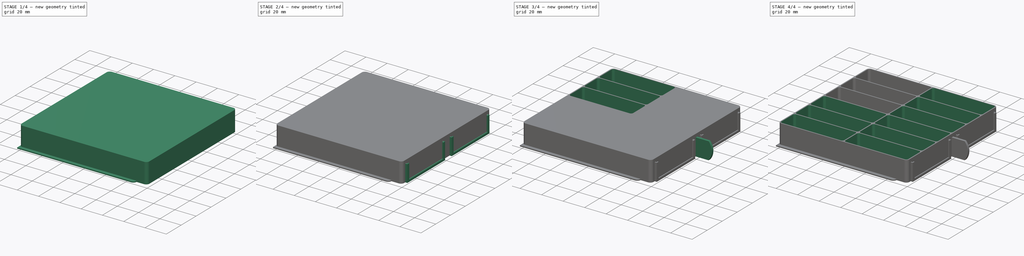
[diagram: build sequence overview — one tinted view per stage of 4, left to right]
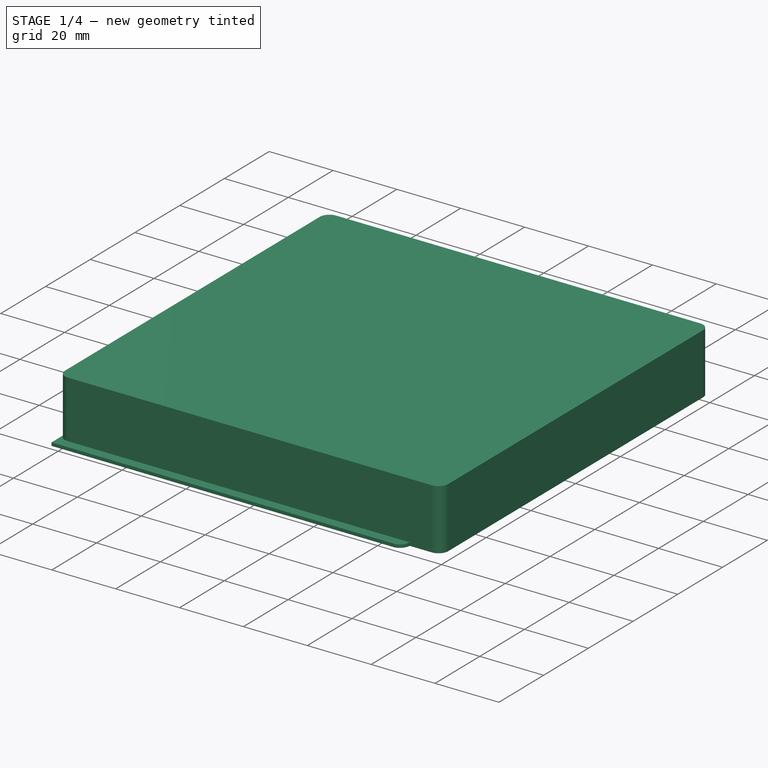
[diagram: stage 1 of 4 — iso view after this stage's code; geometry added in this stage tinted green]
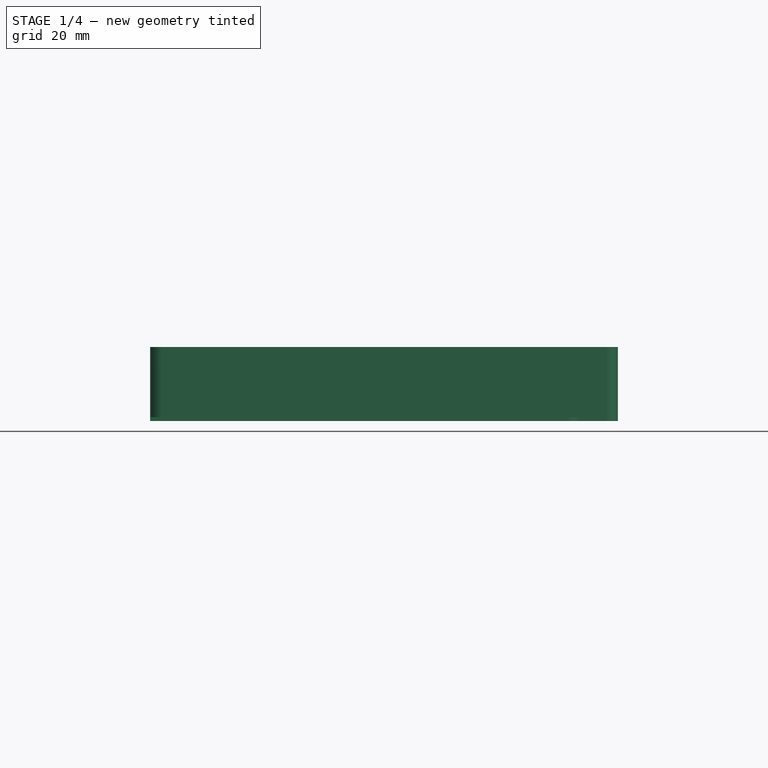
[diagram: stage 1 of 4 — front view after this stage's code; geometry added in this stage tinted green]
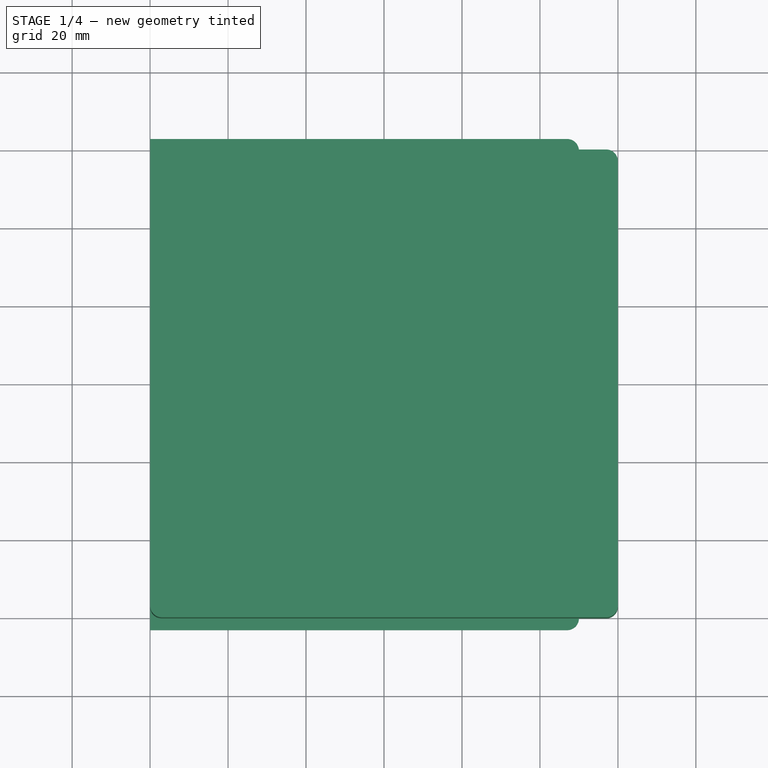
[diagram: stage 1 of 4 — top view after this stage's code; geometry added in this stage tinted green]
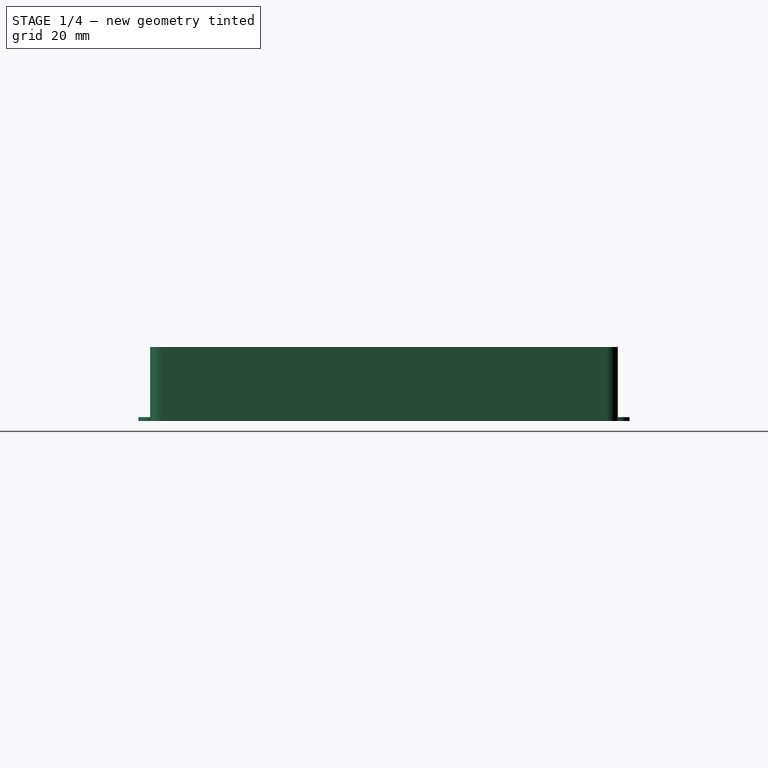
[diagram: stage 1 of 4 — right view after this stage's code; geometry added in this stage tinted green]
FCSTD DOCUMENT  (FreeCAD 0.20R27422 (Git))
Label: _Drawer_12_Comp_D_-_1U
License: CreativeCommons Attribution
LicenseURL: http://creativecommons.org/licenses/by/4.0/
objects: Sketcher::SketchObject×7, PartDesign::Pad×4, PartDesign::Pocket×3, PartDesign::Body×2, PartDesign::Mirrored×2, Spreadsheet::Sheet×1, PartDesign::Plane×1, PartDesign::FeatureBase×1, PartDesign::Fillet×1, PartDesign::MultiTransform×1
note: 30 computed .brp shape members not serialized (recipe doc carries the construction recipe); baked Part::Feature solids carry a one-line shape summary decoded from their .brp

FEATURE [Spreadsheet::Sheet] Spreadsheet  label="DrawerHight"
  cells = A2=please enter the desired height in mm; A3=Hight:; B3(hight)=19; A5=Info:; A6=1U = 19mm; C6=wallthickness = 1.0 mm; A7=2U = 39mm; A8=3U = 59mm; A9=4U = 79mm; A10=5U = 99mm; A11=6U = 119mm
FEATURE [Sketcher::SketchObject] Sketch
  FullyConstrained = false
  MapMode = 5
  Support = -> [XY_Plane]
  sketch-geometry (8):
    g0: LineSegment StartX=-57 StartY=60 StartZ=0 EndX=57 EndY=60 EndZ=0
    g1: LineSegment StartX=60 StartY=57 StartZ=0 EndX=60 EndY=-57 EndZ=0
    g2: LineSegment StartX=57 StartY=-60 StartZ=0 EndX=-57 EndY=-60 EndZ=0
    g3: LineSegment StartX=-60 StartY=-57 StartZ=0 EndX=-60 EndY=57 EndZ=0
    g4: ArcOfCircle CenterX=-57 CenterY=57 CenterZ=0 NormalX=0 NormalY=0 NormalZ=1 AngleXU=0 Radius=3 StartAngle=1.5708 EndAngle=3.14159
    g5: ArcOfCircle CenterX=57 CenterY=57 CenterZ=0 NormalX=0 NormalY=0 NormalZ=1 AngleXU=0 Radius=3 StartAngle=0 EndAngle=1.5708
    g6: ArcOfCircle CenterX=57 CenterY=-57 CenterZ=0 NormalX=0 NormalY=0 NormalZ=1 AngleXU=0 Radius=3 StartAngle=4.71239 EndAngle=6.28319
    g7: ArcOfCircle CenterX=-57 CenterY=-57 CenterZ=0 NormalX=0 NormalY=0 NormalZ=1 AngleXU=0 Radius=3 StartAngle=3.14159 EndAngle=4.71239
  constraints (19):
    c: Horizontal(g0)
    c: Horizontal(g2)
    c: Vertical(g1)
    c: Vertical(g3)
    c: Equal(g0,g3)
    c: Tangent(g3,g4) = 1.5708
    c: Tangent(g0,g4) = 1.5708
    c: Tangent(g0,g5) = 1.5708
    c: Tangent(g1,g5) = 1.5708
    c: Tangent(g1,g6) = 1.5708
    c: Tangent(g2,g6) = 1.5708
    c: Tangent(g2,g7) = 1.5708
    c: Tangent(g3,g7) = 1.5708
    c: Equal(g7,g4)
    c: Equal(g4,g5)
    c: Equal(g5,g6)
    c: Symmetric(g5,g7,g-1)
    c: DistanceX(g3,g1) = 120
    c: Radius(g7) = 3
FEATURE [PartDesign::Pad] Pad
  AllowMultiFace = false
  Direction = (0,0,1)
  Length = 19
  Length2 = 100
  Profile = -> Sketch
  Type = 0
  expr: Length = <<DrawerHight>>.hight
FEATURE [Sketcher::SketchObject] Sketch001
  ExternalGeometry = -> [Sketch]
  FullyConstrained = false
  MapMode = 5
  Support = -> [XY_Plane]
  sketch-geometry (6):
    g0: LineSegment StartX=-60 StartY=63 StartZ=0 EndX=47 EndY=63 EndZ=0
    g1: LineSegment StartX=50 StartY=60 StartZ=0 EndX=50 EndY=-60 EndZ=0
    g2: LineSegment StartX=47 StartY=-63 StartZ=0 EndX=-60 EndY=-63 EndZ=0
    g3: LineSegment StartX=-60 StartY=-63 StartZ=0 EndX=-60 EndY=63 EndZ=0
    g4: ArcOfCircle CenterX=47 CenterY=60 CenterZ=0 NormalX=0 NormalY=0 NormalZ=1 AngleXU=0 Radius=3 StartAngle=-9e-16 EndAngle=1.5708
    g5: ArcOfCircle CenterX=47 CenterY=-60 CenterZ=0 NormalX=0 NormalY=0 NormalZ=1 AngleXU=0 Radius=3 StartAngle=4.71239 EndAngle=6.28319
  constraints (15):
    c: Coincident(g2,g3)
    c: Coincident(g3,g0)
    c: Horizontal(g0)
    c: Horizontal(g2)
    c: Vertical(g1)
    c: Tangent(g0,g4) = 1.5708
    c: Tangent(g1,g4) = 1.5708
    c: Tangent(g2,g5) = 1.5708
    c: Tangent(g1,g5) = 1.5708
    c: Equal(g5,g4)
    c: Symmetric(g2,g0,g-1)
    c: PointOnObject(g-3,g3)
    c: DistanceY(g3,g3) = 126
    c: DistanceX(g0,g1) = 110
    c: Radius(g4) = 3
FEATURE [PartDesign::Pad] Pad001
  AllowMultiFace = false
  BaseFeature = -> Pad
  Direction = (0,0,1)
  Length = 1
  Length2 = 100
  Profile = -> Sketch001
  Type = 0
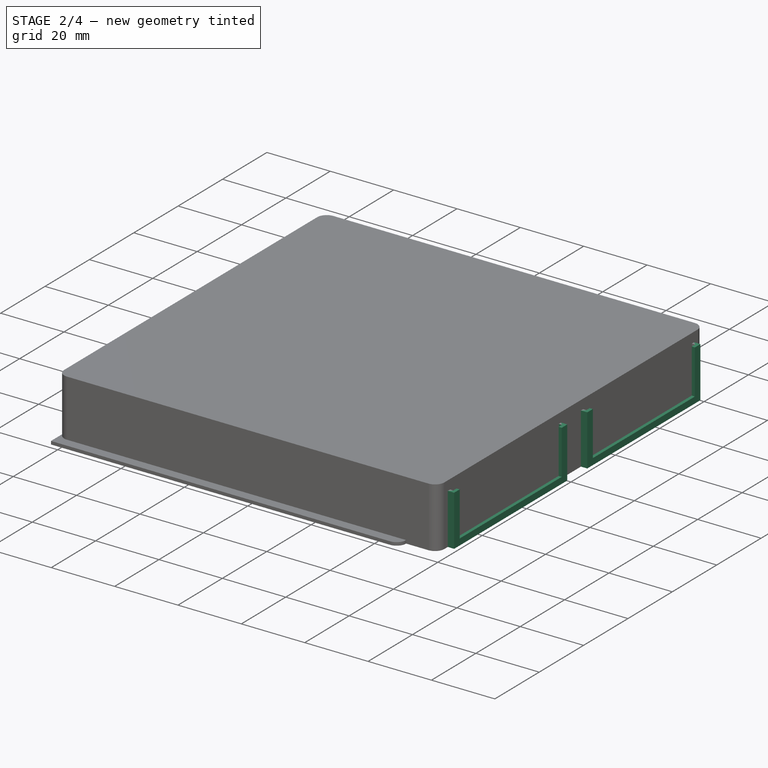
[diagram: stage 2 of 4 — iso view after this stage's code; geometry added in this stage tinted green]
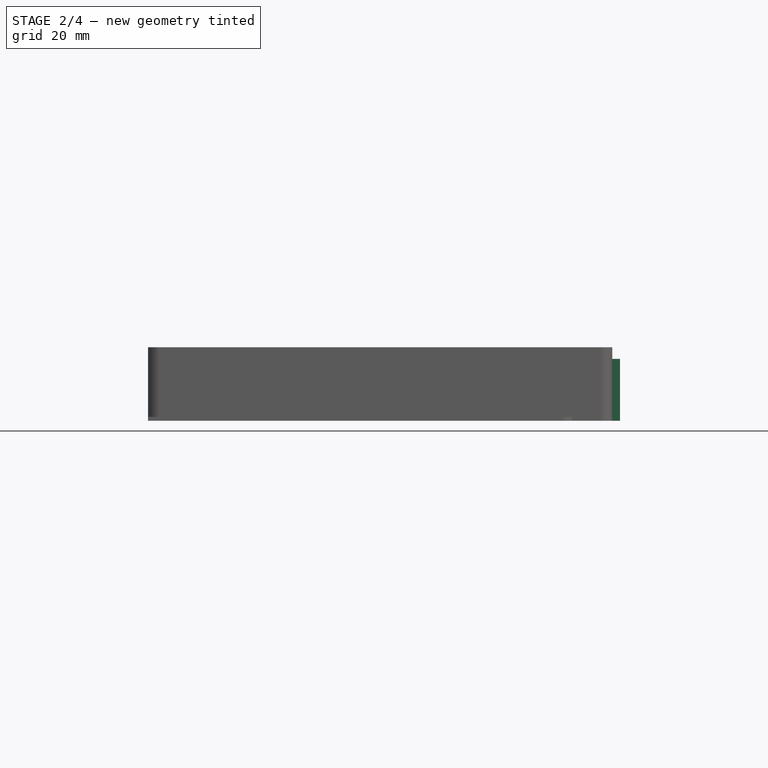
[diagram: stage 2 of 4 — front view after this stage's code; geometry added in this stage tinted green]
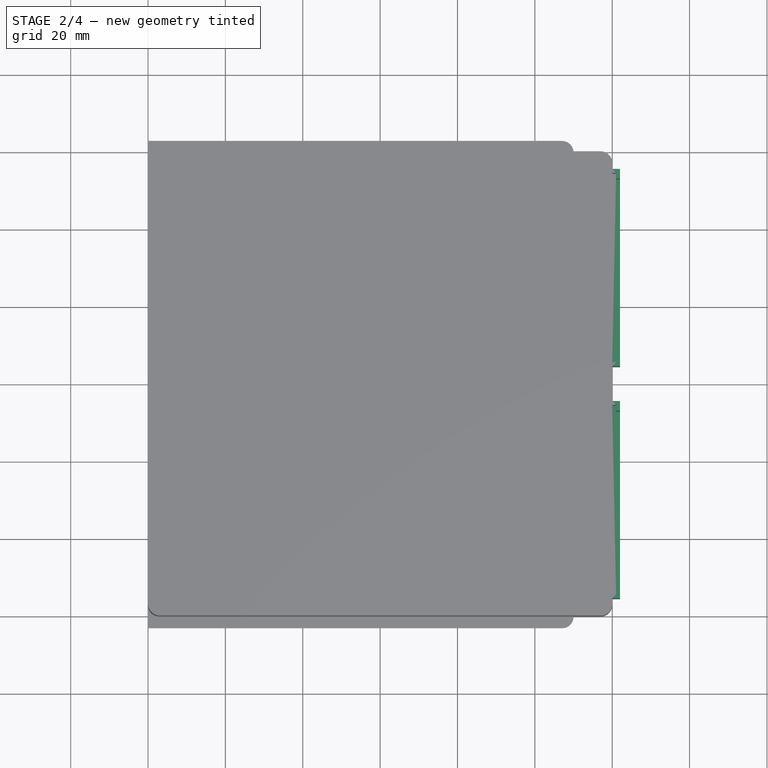
[diagram: stage 2 of 4 — top view after this stage's code; geometry added in this stage tinted green]
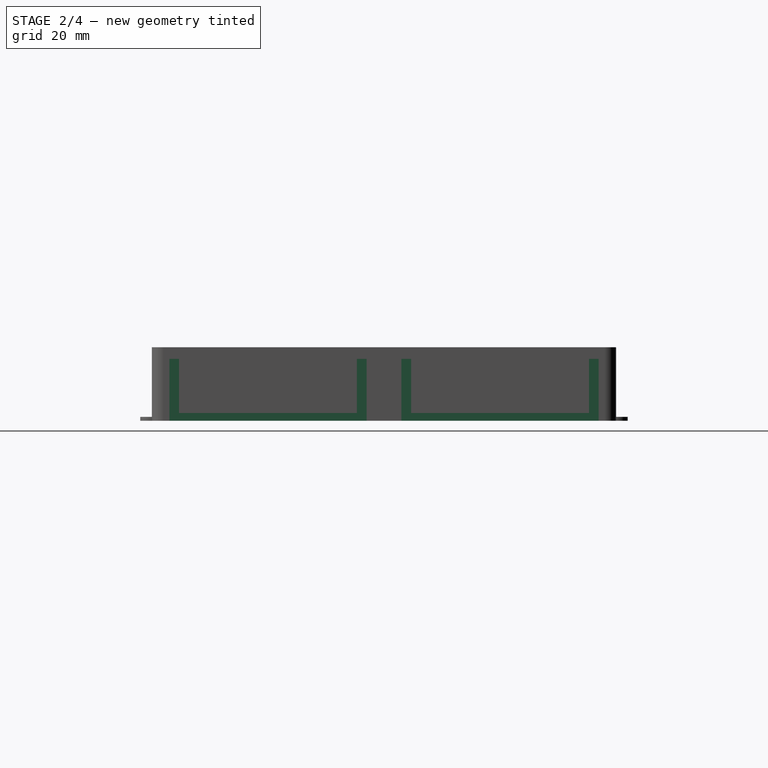
[diagram: stage 2 of 4 — right view after this stage's code; geometry added in this stage tinted green]
FEATURE [PartDesign::Plane] DatumPlane
  Length = 141.875
  MapMode = 5
  Placement = pos=(60,0,0) rot=(0.57735,0.57735,0.57735;2.0944rad)
  ResizeMode = 0
  Support = -> [Pad001]
  Width = 65.8745
FEATURE [Sketcher::SketchObject] Sketch002
  FullyConstrained = true
  MapMode = 5
  Placement = pos=(60,0,0) rot=(0.57735,0.57735,0.57735;2.0944rad)
  Support = -> [Pad001]
  sketch-geometry (8):
    g0: LineSegment StartX=-55.5 StartY=16 StartZ=0 EndX=-4.5 EndY=16 EndZ=0
    g1: LineSegment StartX=-4.5 StartY=16 StartZ=0 EndX=-4.5 EndY=0 EndZ=0
    g2: LineSegment StartX=-4.5 StartY=0 StartZ=0 EndX=-55.5 EndY=0 EndZ=0
    g3: LineSegment StartX=-55.5 StartY=0 StartZ=0 EndX=-55.5 EndY=16 EndZ=0
    g4: LineSegment StartX=4.5 StartY=0 StartZ=0 EndX=55.5 EndY=0 EndZ=0
    g5: LineSegment StartX=55.5 StartY=0 StartZ=0 EndX=55.5 EndY=16 EndZ=0
    g6: LineSegment StartX=55.5 StartY=16 StartZ=0 EndX=4.5 EndY=16 EndZ=0
    g7: LineSegment StartX=4.5 StartY=16 StartZ=0 EndX=4.5 EndY=0 EndZ=0
  constraints (23):
    c: Coincident(g0,g1)
    c: Coincident(g1,g2)
    c: Coincident(g2,g3)
    c: Coincident(g3,g0)
    c: Horizontal(g0)
    c: Horizontal(g2)
    c: Vertical(g1)
    c: Vertical(g3)
    c: PointOnObject(g1,g-1)
    c: Coincident(g4,g5)
    c: Coincident(g5,g6)
    c: Coincident(g6,g7)
    c: Coincident(g7,g4)
    c: Horizontal(g4)
    c: Horizontal(g6)
    c: Vertical(g5)
    c: Vertical(g7)
    c: Symmetric(g1,g4,g-2)
    c: DistanceX(g1,g4) = 9
    c: DistanceX(g2,g2) = 51
    c: DistanceY(g3,g3) = 16
    c: Equal(g1,g7)
    c: Equal(g4,g2)
FEATURE [PartDesign::Pad] Pad002
  AllowMultiFace = false
  BaseFeature = -> Pad001
  Direction = (1,0,0)
  Length = 2
  Length2 = 100
  Profile = -> Sketch002
  Type = 0
FEATURE [Sketcher::SketchObject] Sketch003
  FullyConstrained = true
  MapMode = 5
  Placement = pos=(60,0,0) rot=(0.57735,0.57735,0.57735;2.0944rad)
  Support = -> [DatumPlane]
  sketch-geometry (8):
    g0: LineSegment StartX=-53 StartY=16 StartZ=0 EndX=-7 EndY=16 EndZ=0
    g1: LineSegment StartX=-7 StartY=16 StartZ=0 EndX=-7 EndY=2 EndZ=0
    g2: LineSegment StartX=-7 StartY=2 StartZ=0 EndX=-53 EndY=2 EndZ=0
    g3: LineSegment StartX=-53 StartY=2 StartZ=0 EndX=-53 EndY=16 EndZ=0
    g4: LineSegment StartX=7 StartY=16 StartZ=0 EndX=53 EndY=16 EndZ=0
    g5: LineSegment StartX=53 StartY=16 StartZ=0 EndX=53 EndY=2 EndZ=0
    g6: LineSegment StartX=53 StartY=2 StartZ=0 EndX=7 EndY=2 EndZ=0
    g7: LineSegment StartX=7 StartY=2 StartZ=0 EndX=7 EndY=16 EndZ=0
  constraints (23):
    c: Coincident(g0,g1)
    c: Coincident(g1,g2)
    c: Coincident(g2,g3)
    c: Coincident(g3,g0)
    c: Horizontal(g0)
    c: Horizontal(g2)
    c: Vertical(g1)
    c: Vertical(g3)
    c: Coincident(g4,g5)
    c: Coincident(g5,g6)
    c: Coincident(g6,g7)
    c: Coincident(g7,g4)
    c: Horizontal(g4)
    c: Horizontal(g6)
    c: Vertical(g5)
    c: Vertical(g7)
    c: Equal(g1,g7)
    c: Symmetric(g6,g1,g-2)
    c: Equal(g2,g6)
    c: DistanceY(g-1,g1) = 2
    c: DistanceX(g0,g4) = 14
    c: DistanceY(g3,g3) = 14
    c: DistanceX(g0,g0) = 46
FEATURE [PartDesign::Pocket] Pocket
  AllowMultiFace = false
  BaseFeature = -> Pad002
  Direction = (-1,0,0)
  Length = 3
  Length2 = 100
  Profile = -> Sketch003
  Reversed = true
  Type = 0
FEATURE [Sketcher::SketchObject] Sketch004
  FullyConstrained = true
  MapMode = 5
  Placement = pos=(60,0,0) rot=(0.57735,0.57735,0.57735;2.0944rad)
  Support = -> [DatumPlane]
  sketch-geometry (8):
    g0: LineSegment StartX=-5.5 StartY=16 StartZ=0 EndX=-54.5 EndY=16 EndZ=0
    g1: LineSegment StartX=-54.5 StartY=16 StartZ=0 EndX=-54.5 EndY=1 EndZ=0
    g2: LineSegment StartX=-54.5 StartY=1 StartZ=0 EndX=-5.5 EndY=1 EndZ=0
    g3: LineSegment StartX=-5.5 StartY=1 StartZ=0 EndX=-5.5 EndY=16 EndZ=0
    g4: LineSegment StartX=5.5 StartY=16 StartZ=0 EndX=54.5 EndY=16 EndZ=0
    g5: LineSegment StartX=54.5 StartY=16 StartZ=0 EndX=54.5 EndY=1 EndZ=0
    g6: LineSegment StartX=54.5 StartY=1 StartZ=0 EndX=5.5 EndY=1 EndZ=0
    g7: LineSegment StartX=5.5 StartY=1 StartZ=0 EndX=5.5 EndY=16 EndZ=0
  constraints (23):
    c: Coincident(g0,g1)
    c: Coincident(g1,g2)
    c: Coincident(g2,g3)
    c: Coincident(g3,g0)
    c: Horizontal(g0)
    c: Horizontal(g2)
    c: Vertical(g1)
    c: Vertical(g3)
    c: Coincident(g4,g5)
    c: Coincident(g5,g6)
    c: Coincident(g6,g7)
    c: Coincident(g7,g4)
    c: Horizontal(g4)
    c: Horizontal(g6)
    c: Vertical(g5)
    c: Vertical(g7)
    c: Symmetric(g6,g2,g-2)
    c: DistanceY(g-1,g2) = 1
    c: DistanceY(g1,g1) = 15
    c: DistanceX(g2,g2) = 49
    c: Equal(g2,g6)
    c: Equal(g3,g7)
    c: DistanceX(g0,g4) = 11
FEATURE [PartDesign::Pocket] Pocket001
  AllowMultiFace = false
  BaseFeature = -> Pocket
  Direction = (-1,0,0)
  Length = 1
  Length2 = 100
  Profile = -> Sketch004
  Reversed = true
  Type = 0
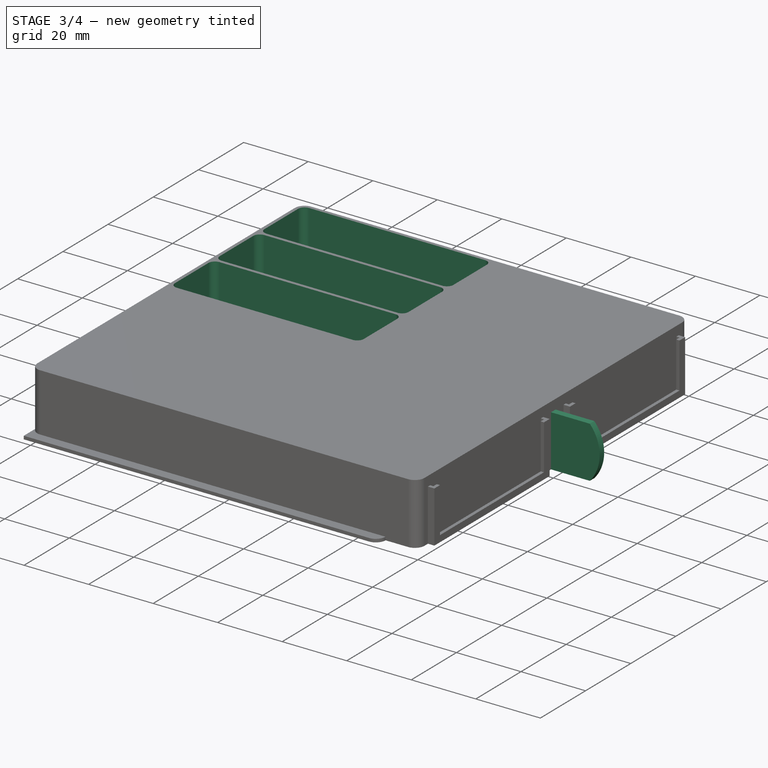
[diagram: stage 3 of 4 — iso view after this stage's code; geometry added in this stage tinted green]
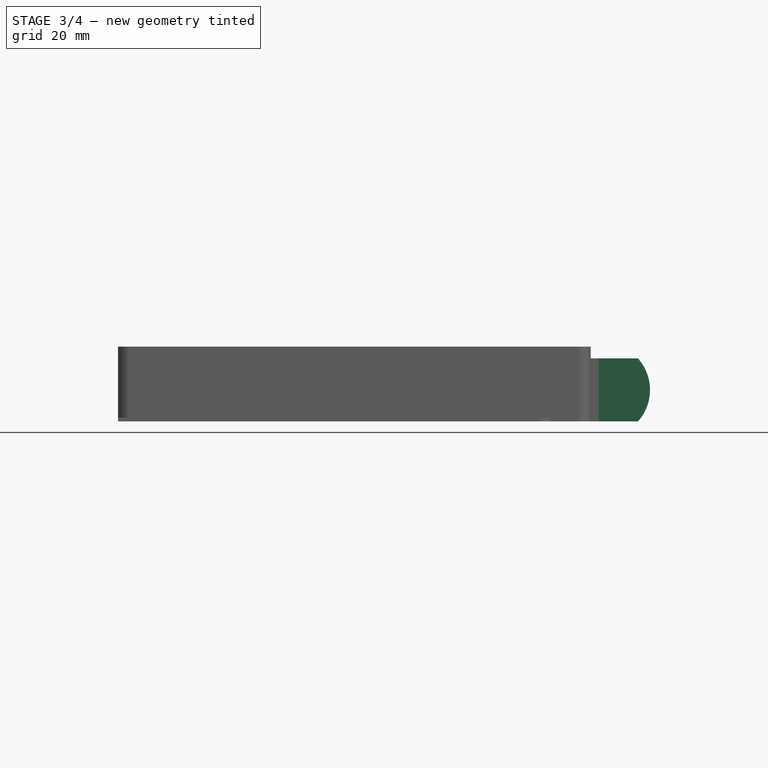
[diagram: stage 3 of 4 — front view after this stage's code; geometry added in this stage tinted green]
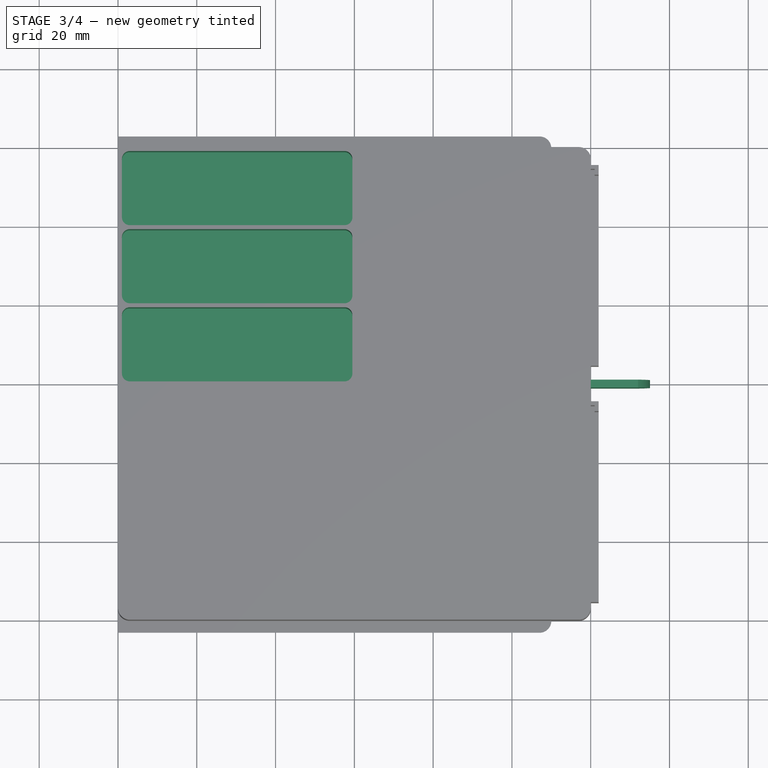
[diagram: stage 3 of 4 — top view after this stage's code; geometry added in this stage tinted green]
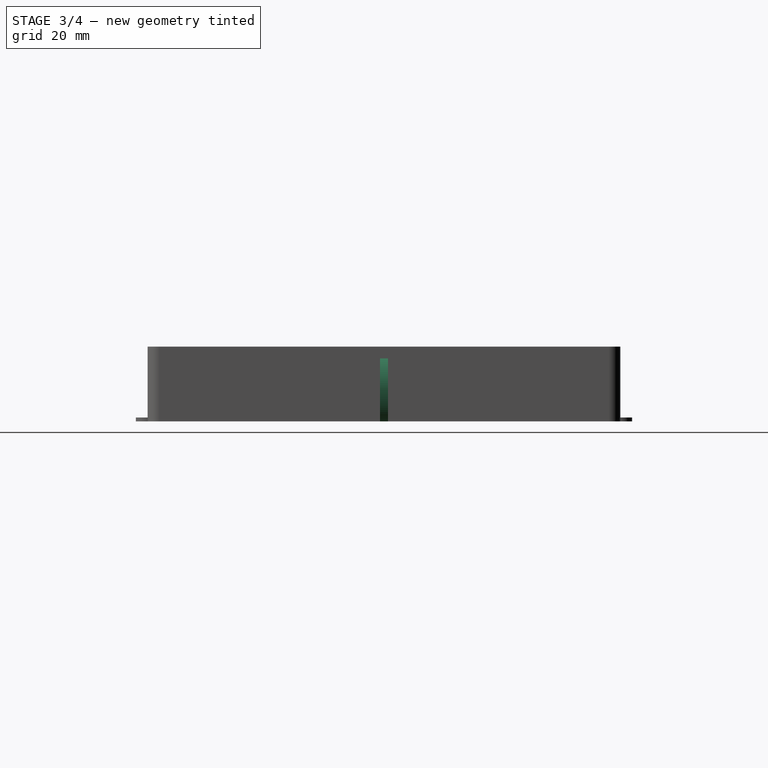
[diagram: stage 3 of 4 — right view after this stage's code; geometry added in this stage tinted green]
FEATURE [Sketcher::SketchObject] Sketch005
  ExternalGeometry = -> [Sketch002]
  FullyConstrained = true
  MapMode = 5
  Placement = pos=(0,0,0) rot=(1,0,0;1.5708rad)
  Support = -> [XZ_Plane]
  sketch-geometry (4):
    g0: ArcOfCircle CenterX=63.0557 CenterY=8 CenterZ=0 NormalX=0 NormalY=0 NormalZ=1 AngleXU=0 Radius=12 StartAngle=5.55346 EndAngle=7.01291
    g1: LineSegment StartX=72 StartY=16 StartZ=0 EndX=60 EndY=16 EndZ=0
    g2: LineSegment StartX=60 StartY=16 StartZ=0 EndX=60 EndY=1.2859e-11 EndZ=0
    g3: LineSegment StartX=60 StartY=1.28582e-11 StartZ=0 EndX=72 EndY=1.28582e-11 EndZ=0
  constraints (11):
    c: Coincident(g0,g1)
    c: Coincident(g1,g-3)
    c: Horizontal(g1)
    c: Coincident(g1,g2)
    c: Coincident(g2,g-3)
    c: Coincident(g2,g3)
    c: Coincident(g3,g0)
    c: Horizontal(g3)
    c: Equal(g1,g3)
    c: DistanceX(g1,g1) = 12
    c: Radius(g0) = 12
FEATURE [PartDesign::Pad] Pad003
  AllowMultiFace = false
  BaseFeature = -> Pocket001
  Direction = (0,-1,-2e-16)
  Length = 2
  Length2 = 100
  Midplane = true
  Profile = -> Sketch005
  Type = 0
FEATURE [PartDesign::Body] Body  label="Main-Body"
  Group = -> [Sketch,Pad,Sketch001,Pad001,DatumPlane,Sketch002,Pad002,Sketch003,Pocket,Sketch004,Pocket001,Sketch005,Pad003]
  Origin = -> Origin
  Tip = -> Pad003
FEATURE [PartDesign::FeatureBase] Clone
  BaseFeature = -> Body
FEATURE [Sketcher::SketchObject] Sketch006
  AttachmentOffset = pos=(0,0,19) rot=(0,0,1;0rad)
  FullyConstrained = true
  MapMode = 5
  Placement = pos=(0,0,19) rot=(0,0,1;0rad)
  Support = -> [XY_Plane001]
  expr: .AttachmentOffset.Base.z = <<DrawerHight>>.hight
  sketch-geometry (40):
    g0: LineSegment StartX=-57 StartY=59 StartZ=0 EndX=-2.5 EndY=59 EndZ=0
    g1: LineSegment StartX=-0.5 StartY=57 StartZ=0 EndX=-0.5 EndY=42.1667 EndZ=0
    g2: LineSegment StartX=-2.5 StartY=40.1667 StartZ=0 EndX=-57 EndY=40.1667 EndZ=0
    g3: LineSegment StartX=-59 StartY=42.1667 StartZ=0 EndX=-59 EndY=57 EndZ=0
    g4: LineSegment StartX=-57 StartY=39.1667 StartZ=0 EndX=-2.5 EndY=39.1667 EndZ=0
    g5: LineSegment StartX=-0.5 StartY=37.1667 StartZ=0 EndX=-0.5 EndY=22.3333 EndZ=0
    g6: LineSegment StartX=-2.5 StartY=20.3333 StartZ=0 EndX=-57 EndY=20.3333 EndZ=0
    g7: LineSegment StartX=-59 StartY=22.3333 StartZ=0 EndX=-59 EndY=37.1667 EndZ=0
    g8: LineSegment StartX=-57 StartY=19.3333 StartZ=0 EndX=-2.5 EndY=19.3333 EndZ=0
    g9: LineSegment StartX=-0.5 StartY=17.3333 StartZ=0 EndX=-0.5 EndY=2.5 EndZ=0
    g10: LineSegment StartX=-2.5 StartY=0.5 StartZ=0 EndX=-57 EndY=0.5 EndZ=0
    g11: LineSegment StartX=-59 StartY=2.5 StartZ=0 EndX=-59 EndY=17.3333 EndZ=0
    g12: LineSegment StartX=-60 StartY=60 StartZ=0 EndX=60 EndY=60 EndZ=0
    g13: LineSegment StartX=60 StartY=60 StartZ=0 EndX=60 EndY=-60 EndZ=0
    g14: LineSegment StartX=60 StartY=-60 StartZ=0 EndX=-60 EndY=-60 EndZ=0
    g15: LineSegment StartX=-60 StartY=-60 StartZ=0 EndX=-60 EndY=60 EndZ=0
    g16: ArcOfCircle CenterX=-57 CenterY=57 CenterZ=0 NormalX=0 NormalY=0 NormalZ=1 AngleXU=0 Radius=2 StartAngle=1.5708 EndAngle=3.14159
    g17: GeomPoint X=-59 Y=59 Z=0
    g18: ArcOfCircle CenterX=-2.5 CenterY=57 CenterZ=0 NormalX=0 NormalY=0 NormalZ=1 AngleXU=0 Radius=2 StartAngle=6e-16 EndAngle=1.5708
    g19: GeomPoint X=-0.5 Y=59 Z=0
    g20: ArcOfCircle CenterX=-57 CenterY=42.1667 CenterZ=0 NormalX=0 NormalY=0 NormalZ=1 AngleXU=0 Radius=2 StartAngle=3.14159 EndAngle=4.71239
    g21: GeomPoint X=-59 Y=40.1667 Z=0
    g22: ArcOfCircle CenterX=-2.5 CenterY=42.1667 CenterZ=0 NormalX=0 NormalY=0 NormalZ=1 AngleXU=0 Radius=2 StartAngle=4.71239 EndAngle=6.28319
    g23: GeomPoint X=-0.5 Y=40.1667 Z=0
    g24: ArcOfCircle CenterX=-2.5 CenterY=37.1667 CenterZ=0 NormalX=0 NormalY=0 NormalZ=1 AngleXU=0 Radius=2 StartAngle=0 EndAngle=1.5708
    g25: GeomPoint X=-0.5 Y=39.1667 Z=0
    g26: ArcOfCircle CenterX=-57 CenterY=37.1667 CenterZ=0 NormalX=0 NormalY=0 NormalZ=1 AngleXU=0 Radius=2 StartAngle=1.5708 EndAngle=3.14159
    g27: GeomPoint X=-59 Y=39.1667 Z=0
    g28: ArcOfCircle CenterX=-57 CenterY=22.3333 CenterZ=0 NormalX=0 NormalY=0 NormalZ=1 AngleXU=0 Radius=2 StartAngle=3.14159 EndAngle=4.71239
    g29: GeomPoint X=-59 Y=20.3333 Z=0
    g30: ArcOfCircle CenterX=-2.5 CenterY=22.3333 CenterZ=0 NormalX=0 NormalY=0 NormalZ=1 AngleXU=0 Radius=2 StartAngle=4.71239 EndAngle=6.28319
    g31: GeomPoint X=-0.5 Y=20.3333 Z=0
    g32: ArcOfCircle CenterX=-57 CenterY=17.3333 CenterZ=0 NormalX=0 NormalY=0 NormalZ=1 AngleXU=0 Radius=2 StartAngle=1.5708 EndAngle=3.14159
    g33: GeomPoint X=-59 Y=19.3333 Z=0
    g34: ArcOfCircle CenterX=-2.5 CenterY=17.3333 CenterZ=0 NormalX=0 NormalY=0 NormalZ=1 AngleXU=0 Radius=2 StartAngle=0 EndAngle=1.5708
    g35: GeomPoint X=-0.5 Y=19.3333 Z=0
    g36: ArcOfCircle CenterX=-2.5 CenterY=2.5 CenterZ=0 NormalX=0 NormalY=0 NormalZ=1 AngleXU=0 Radius=2 StartAngle=4.71239 EndAngle=6.28319
    g37: GeomPoint X=-0.5 Y=0.5 Z=0
    g38: ArcOfCircle CenterX=-57 CenterY=2.5 CenterZ=0 NormalX=0 NormalY=0 NormalZ=1 AngleXU=0 Radius=2 StartAngle=3.14159 EndAngle=4.71239
    g39: GeomPoint X=-59 Y=0.5 Z=0
  constraints (95):
    c: Horizontal(g0)
    c: Horizontal(g2)
    c: Vertical(g1)
    c: Vertical(g3)
    c: Horizontal(g4)
    c: Horizontal(g6)
    c: Vertical(g5)
    c: Vertical(g7)
    c: Horizontal(g8)
    c: Horizontal(g10)
    c: Vertical(g9)
    c: Vertical(g11)
    c: Coincident(g12,g13)
    c: Coincident(g13,g14)
    c: Coincident(g14,g15)
    c: Coincident(g15,g12)
    c: Horizontal(g12)
    c: Horizontal(g14)
    c: Vertical(g13)
    c: Vertical(g15)
    c: Symmetric(g14,g12,g-1)
    c: Equal(g15,g12)
    c: DistanceX(g12,g12) = 120
    c: DistanceY(g-1,g39) = 0.5
    c: DistanceX(g37,g-1) = 0.5
    c: DistanceX(g12,g17) = 1
    c: DistanceY(g17,g12) = 1
    c: DistanceY(g27,g21) = 1
    c: PointOnObject(g17,g0)
    c: PointOnObject(g17,g3)
    c: Tangent(g0,g16) = 1.5708
    c: Tangent(g3,g16) = 1.5708
    c: PointOnObject(g19,g0)
    c: PointOnObject(g19,g1)
    c: Tangent(g0,g18) = 1.5708
    c: Tangent(g1,g18) = 1.5708
    c: PointOnObject(g21,g2)
    c: PointOnObject(g21,g3)
    c: Tangent(g2,g20) = 1.5708
    c: Tangent(g3,g20) = 1.5708
    c: PointOnObject(g23,g1)
    c: PointOnObject(g23,g2)
    c: Tangent(g1,g22) = 1.5708
    c: Tangent(g2,g22) = 1.5708
    c: PointOnObject(g25,g4)
    c: PointOnObject(g25,g5)
    c: Tangent(g4,g24) = 1.5708
    c: Tangent(g5,g24) = 1.5708
    c: PointOnObject(g27,g4)
    c: PointOnObject(g27,g7)
    c: Tangent(g4,g26) = 1.5708
    c: Tangent(g7,g26) = 1.5708
    c: PointOnObject(g29,g6)
    c: PointOnObject(g29,g7)
    c: Tangent(g6,g28) = 1.5708
    c: Tangent(g7,g28) = 1.5708
    c: PointOnObject(g31,g5)
    c: PointOnObject(g31,g6)
    c: Tangent(g5,g30) = 1.5708
    c: Tangent(g6,g30) = 1.5708
    c: PointOnObject(g33,g8)
    c: PointOnObject(g33,g11)
    c: Tangent(g8,g32) = 1.5708
    c: Tangent(g11,g32) = 1.5708
    c: PointOnObject(g35,g8)
    c: PointOnObject(g35,g9)
    c: Tangent(g8,g34) = 1.5708
    c: Tangent(g9,g34) = 1.5708
    c: PointOnObject(g37,g9)
    c: PointOnObject(g37,g10)
    c: Tangent(g9,g36) = 1.5708
    c: Tangent(g10,g36) = 1.5708
    c: PointOnObject(g39,g10)
    c: PointOnObject(g39,g11)
    c: Tangent(g10,g38) = 1.5708
    c: Tangent(g11,g38) = 1.5708
    c: Equal(g18,g16)
    c: Equal(g16,g20)
    c: Equal(g20,g22)
    c: Equal(g22,g24)
    c: Equal(g24,g26)
    c: Equal(g26,g28)
    c: Equal(g28,g30)
    c: Equal(g30,g34)
    c: Equal(g34,g32)
    c: Equal(g32,g38)
    c: Equal(g38,g36)
    c: Radius(g18) = 2
    c: Vertical(g27,g21)
    c: Vertical(g25,g23)
    c: Vertical(g35,g31)
    c: Vertical(g33,g29)
    c: DistanceY(g33,g29) = 1
    c: Equal(g3,g7)
    c: Equal(g7,g11)
FEATURE [PartDesign::Pocket] Pocket002
  BaseFeature = -> Clone
  Direction = (0,0,-1)
  Length = 18
  Length2 = 5
  Profile = -> Sketch006
  ReferenceAxis = -> Sketch006 [N_Axis]
  Type = 0
  expr: Length = <<DrawerHight>>.hight - 1
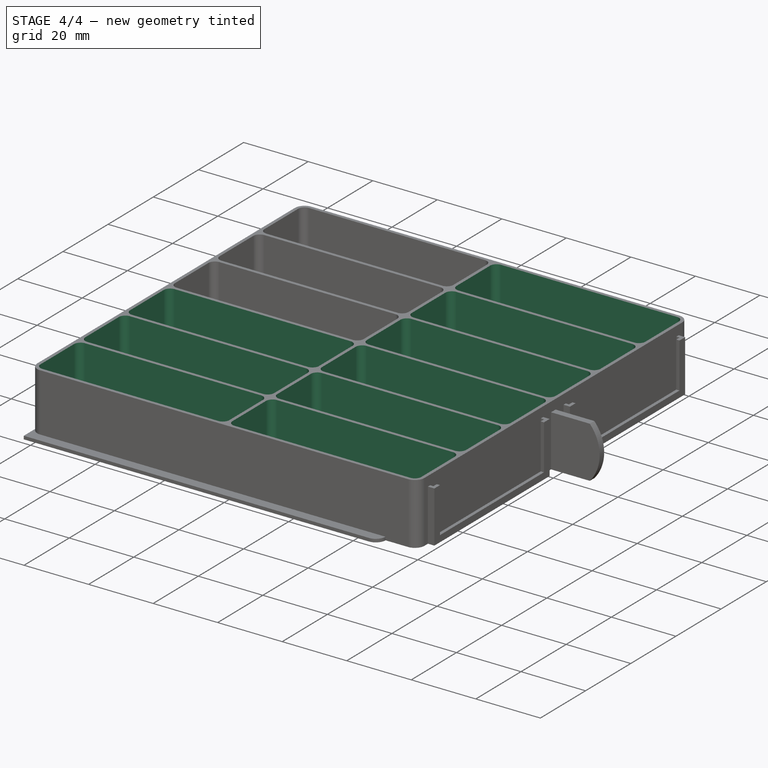
[diagram: stage 4 of 4 — iso view after this stage's code; geometry added in this stage tinted green]
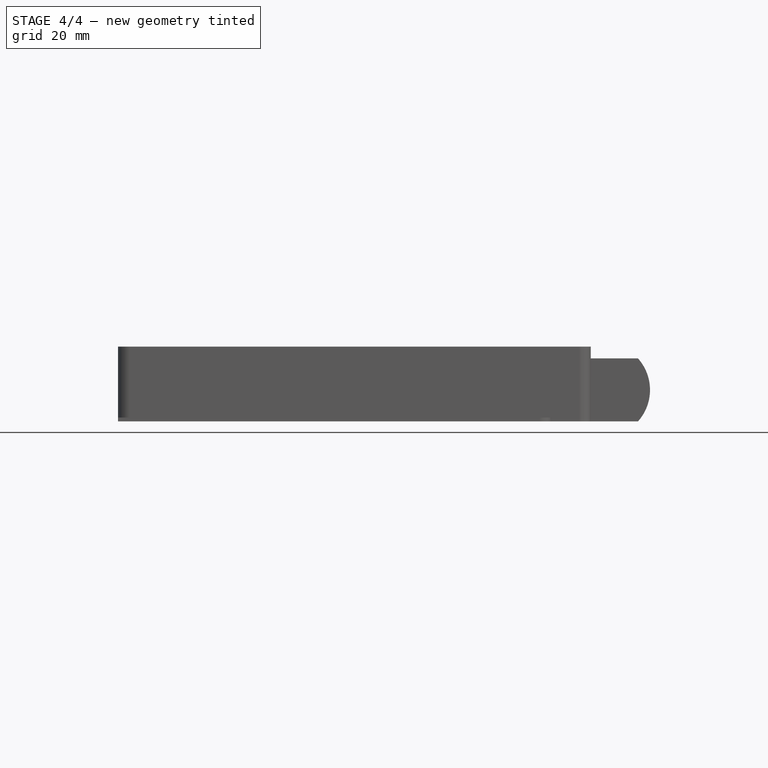
[diagram: stage 4 of 4 — front view after this stage's code; geometry added in this stage tinted green]
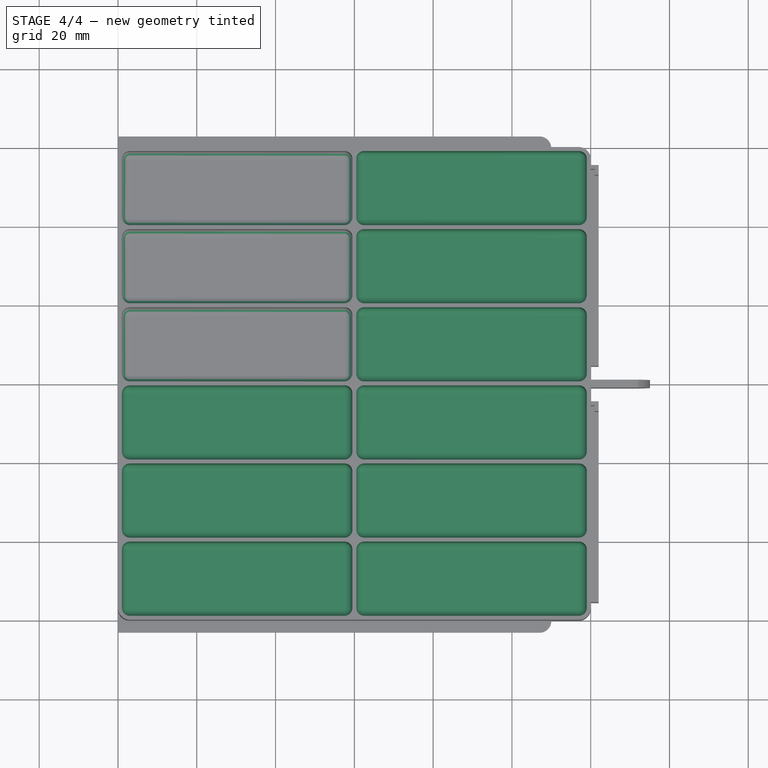
[diagram: stage 4 of 4 — top view after this stage's code; geometry added in this stage tinted green]
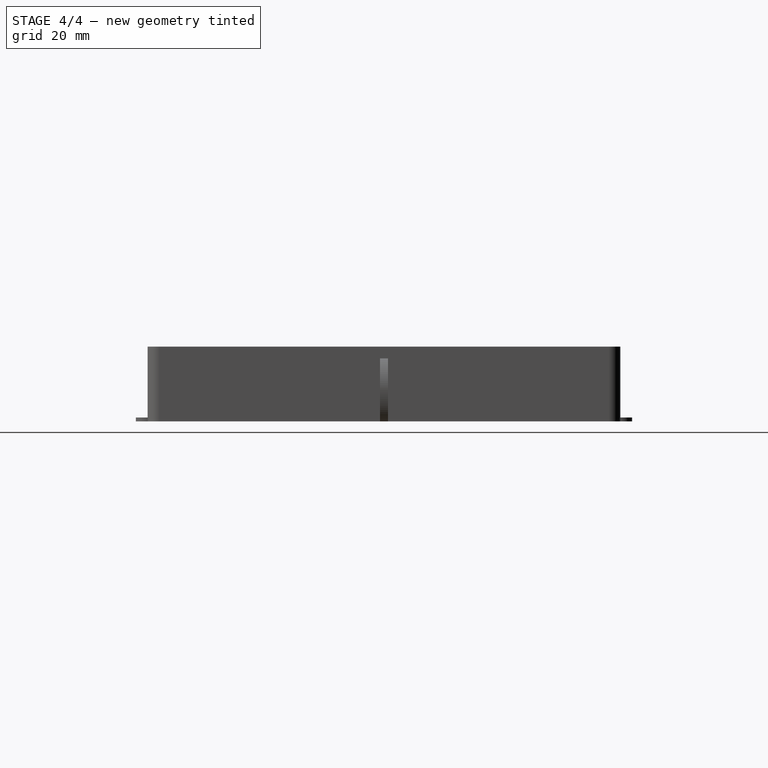
[diagram: stage 4 of 4 — right view after this stage's code; geometry added in this stage tinted green]
FEATURE [PartDesign::Fillet] Fillet
  Base = -> Pocket002 [Face68,Face69,Face70]
  BaseFeature = -> Pocket002
  Radius = 2
  SupportTransform = false
  UseAllEdges = false
FEATURE [PartDesign::Mirrored] Mirrored
  MirrorPlane = -> Sketch006 [V_Axis]
  Overlap = 0
FEATURE [PartDesign::Mirrored] Mirrored001
  MirrorPlane = -> Sketch006 [H_Axis]
  Overlap = 0
FEATURE [PartDesign::MultiTransform] MultiTransform
  BaseFeature = -> Fillet
  Originals = -> [Pocket002,Fillet]
  Overlap = 0
  Transformations = -> [Mirrored,Mirrored001]
FEATURE [PartDesign::Body] Body001  label="Drawer_12_Comp_D_-_1U"
  Group = -> [Clone,Sketch006,Pocket002,Fillet,MultiTransform,Mirrored,Mirrored001]
  Origin = -> Origin001
  Tip = -> MultiTransform
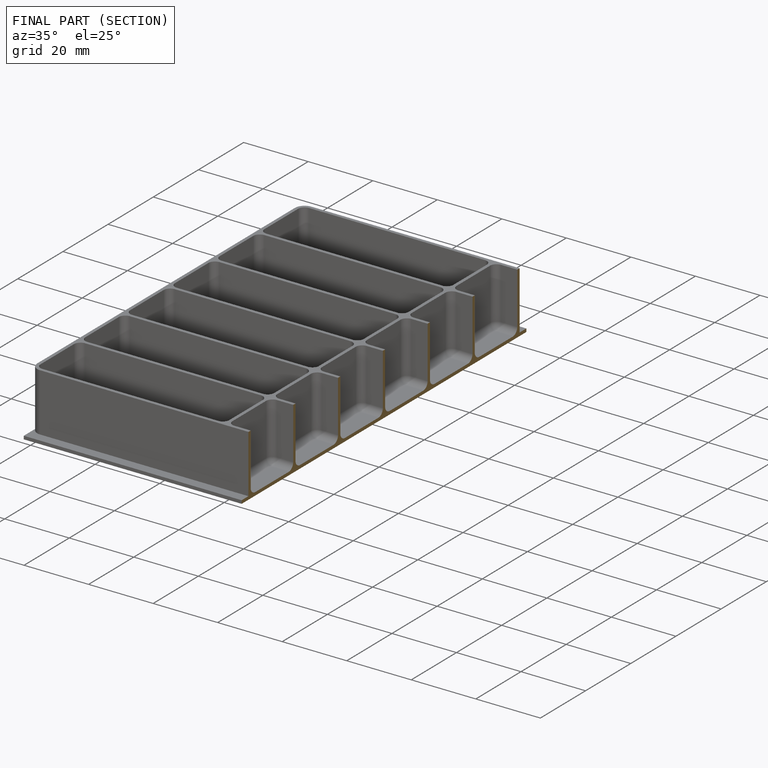
[diagram: finished part — half-section view (interior)]
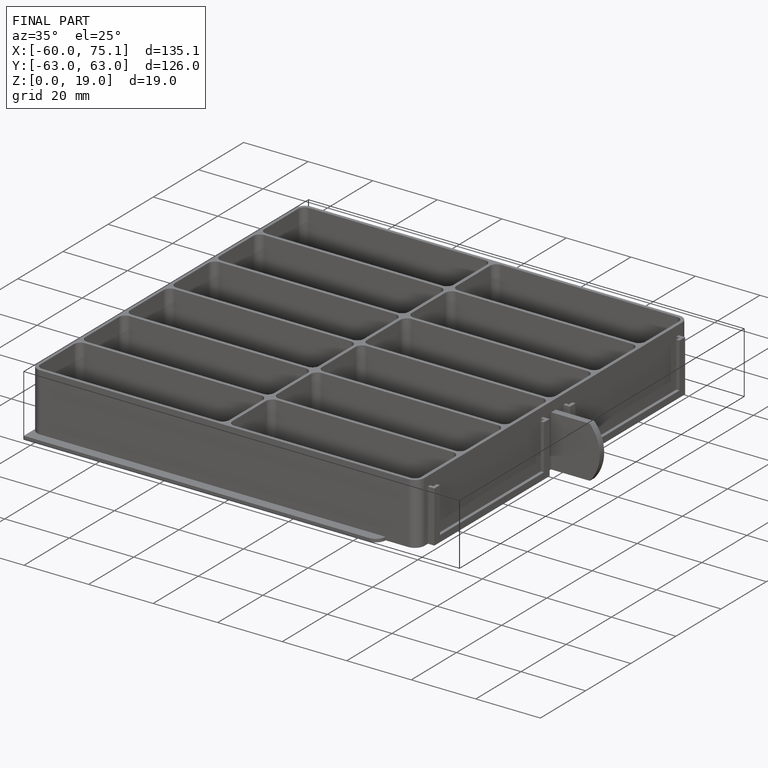
[diagram: finished part — iso view with bounding-box wireframe]
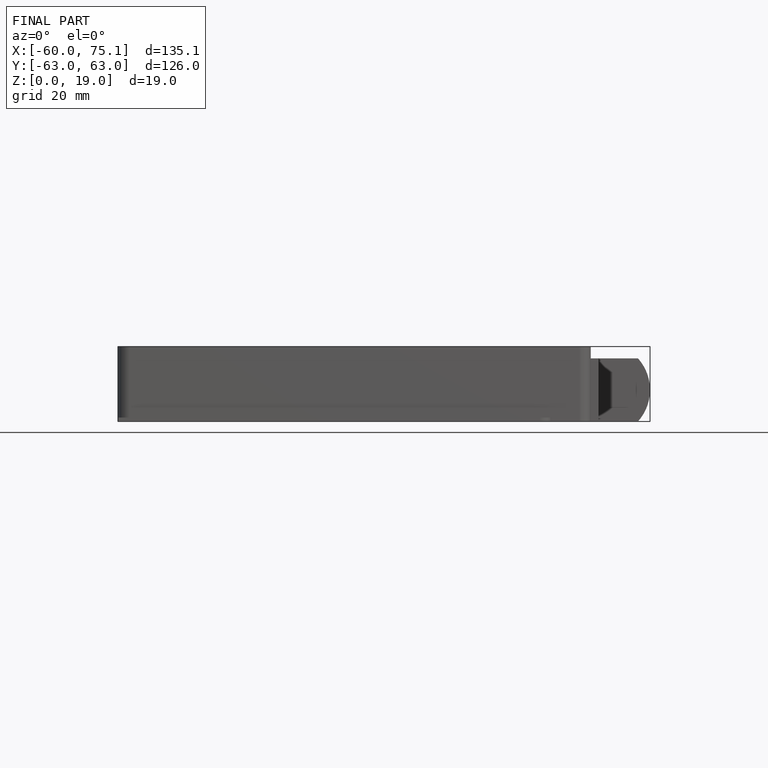
[diagram: finished part — front view with bounding-box wireframe]
